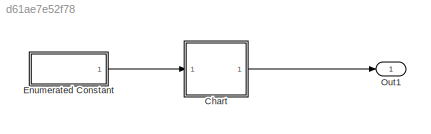
MODEL slx_d61ae7e52f78
KIND model
CONFIG AbsTol = auto
CONFIG EnableMultiTasking = off
CONFIG FixedStep = 1.000000
CONFIG MaxStep = auto
CONFIG MinStep = auto
CONFIG RelTol = 1e-3
CONFIG SampleTimeConstraint = Unconstrained
CONFIG Solver = FixedStepDiscrete
CONFIG SolverName = FixedStepDiscrete
CONFIG StartTime = 0.0
CONFIG StopTime = 10.0
WORKSPACE source: MAT-file member
WORKSPACE MCOS: class17 (value not decoded)
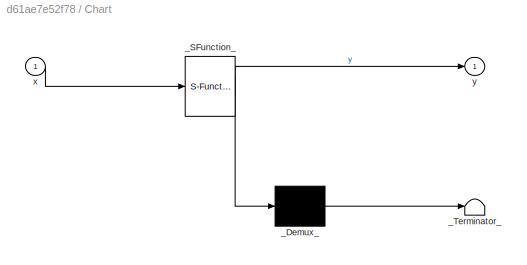
BLOCK [SubSystem] Chart
  ErrorFcn = Stateflow.Translate.translate
  PermitHierarchicalResolution = ExplicitOnly
  Ports = [1, 1]
  RequestExecContextInheritance = off
  SFBlockType = Chart
  TreatAsAtomicUnit = on
  Variant = off
BLOCK [Demux] Chart/_Demux_
  Outputs = 1
  Ports = [1, 1]
BLOCK [S-Function] Chart/_SFunction_
  EnableBusSupport = on
  FunctionName = sf_sfun
  PortCounts = [1 2]
  Ports = [1, 2]
  SFcnIsStateOwnerBlock = off
  SFunctionDeploymentMode = off
  Tag = Stateflow S-Function SFEnum_PP 3
BLOCK [Terminator] Chart/_Terminator_
BLOCK [Inport] Chart/x
  IconDisplay = Port number
BLOCK [Outport] Chart/y
  IconDisplay = Port number
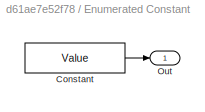
BLOCK [SubSystem] Enumerated Constant
  AncestorBlock = simulink/Sources/Enumerated\nConstant
  DialogController = Simulink.DDGSource
  MaskHideContents = on
  PermitHierarchicalResolution = ExplicitOnly
  Ports = [0, 1]
  RequestExecContextInheritance = off
  TreatAsAtomicUnit = on
  Variant = off
BLOCK [Constant] Enumerated Constant/Constant
  DialogController = Simulink.DDGSource
  LockScale = on
  OutDataTypeStr = OutDataTypeStr
  SampleTime = SampleTime
  Value = Value
BLOCK [Outport] Enumerated Constant/Out
  IconDisplay = Port number
  OutDataTypeStr = OutDataTypeStr
BLOCK [Outport] Out1
  IconDisplay = Port number
LINE Chart:1 -> Out1:1
LINE Enumerated Constant:1 -> Chart:1
CHART Chart states=1 transitions=1
  STATE_LABEL 'A_\nen, du: y = x;'
